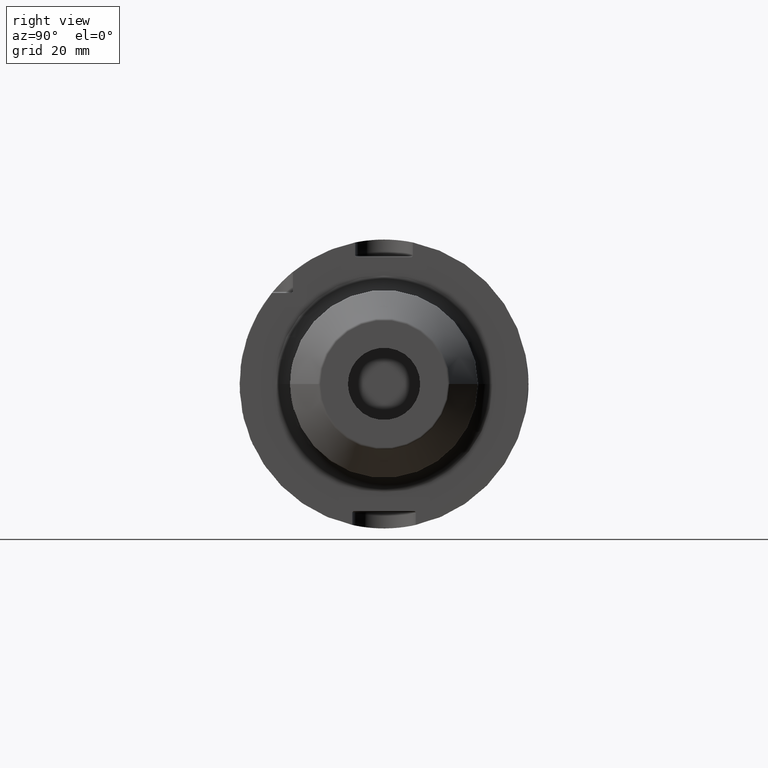
[diagram: clean part render]
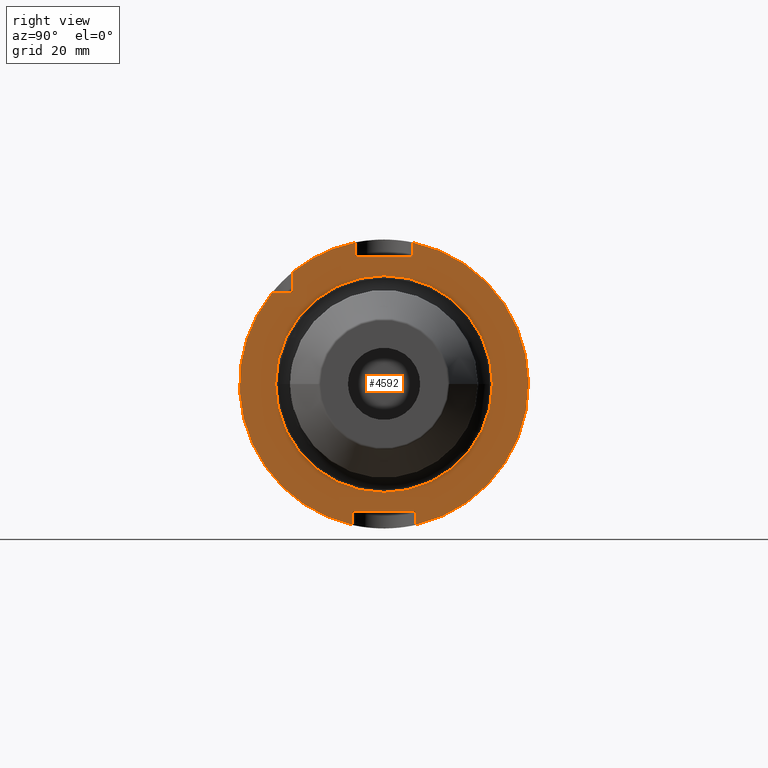
[diagram: same view with one face highlighted and labeled with its STEP entity id]
A machine part, right view. The second image highlights one B-rep face of the part: STEP entity #4592.
In plain terms, the highlighted planar face has unit normal (1, 0, 0).
Its self-contained STEP definition (entity closure, byte-faithful):
#1051=DIRECTION('',(0.E0,-7.071067811865E-1,-7.071067811865E-1));
#1052=VECTOR('',#1051,5.656854249492E-1);
#1053=CARTESIAN_POINT('',(2.9E1,-3.15E1,3.19E1));
#1054=LINE('',#1053,#1052);
#1059=DIRECTION('',(0.E0,1.E0,0.E0));
#1060=VECTOR('',#1059,6.929756630708E0);
#1061=CARTESIAN_POINT('',(2.9E1,-3.882975663071E1,3.15E1));
#1062=LINE('',#1061,#1060);
#1063=DIRECTION('',(0.E0,0.E0,-1.E0));
#1064=VECTOR('',#1063,6.929756630708E0);
#1065=CARTESIAN_POINT('',(2.9E1,-3.15E1,3.882975663071E1));
#1066=LINE('',#1065,#1064);
#1067=DIRECTION('',(0.E0,0.E0,-1.E0));
#1068=VECTOR('',#1067,4.589794855664E0);
#1069=CARTESIAN_POINT('',(2.9E1,-1.E1,4.898979485566E1));
#1070=LINE('',#1069,#1068);
#1071=DIRECTION('',(0.E0,1.E0,0.E0));
#1072=VECTOR('',#1071,1.92E1);
#1073=CARTESIAN_POINT('',(2.9E1,-9.6E0,4.4E1));
#1074=LINE('',#1073,#1072);
#1075=DIRECTION('',(0.E0,0.E0,-1.E0));
#1076=VECTOR('',#1075,4.589794855664E0);
#1077=CARTESIAN_POINT('',(2.9E1,1.E1,4.898979485566E1));
#1078=LINE('',#1077,#1076);
#1079=DIRECTION('',(0.E0,0.E0,1.E0));
#1080=VECTOR('',#1079,4.374993593029E0);
#1081=CARTESIAN_POINT('',(2.9E1,1.1E1,-4.877499359303E1));
#1082=LINE('',#1081,#1080);
#1083=DIRECTION('',(0.E0,-1.E0,0.E0));
#1084=VECTOR('',#1083,2.12E1);
#1085=CARTESIAN_POINT('',(2.9E1,1.06E1,-4.4E1));
#1086=LINE('',#1085,#1084);
#1087=DIRECTION('',(0.E0,0.E0,1.E0));
#1088=VECTOR('',#1087,4.374993593029E0);
#1089=CARTESIAN_POINT('',(2.9E1,-1.1E1,-4.877499359303E1));
#1090=LINE('',#1089,#1088);
#1091=CARTESIAN_POINT('',(2.9E1,0.E0,0.E0));
#1092=DIRECTION('',(1.E0,0.E0,0.E0));
#1093=DIRECTION('',(0.E0,-1.E0,0.E0));
#1094=AXIS2_PLACEMENT_3D('',#1091,#1092,#1093);
#1096=CARTESIAN_POINT('',(2.9E1,0.E0,0.E0));
#1097=DIRECTION('',(1.E0,0.E0,0.E0));
#1098=DIRECTION('',(0.E0,1.E0,0.E0));
#1099=AXIS2_PLACEMENT_3D('',#1096,#1097,#1098);
#1114=CARTESIAN_POINT('',(2.9E1,0.E0,0.E0));
#1115=DIRECTION('',(1.E0,0.E0,0.E0));
#1116=DIRECTION('',(0.E0,2.2E-1,-9.754998718606E-1));
#1117=AXIS2_PLACEMENT_3D('',#1114,#1115,#1116);
#1127=CARTESIAN_POINT('',(2.9E1,0.E0,0.E0));
#1128=DIRECTION('',(1.E0,0.E0,0.E0));
#1129=DIRECTION('',(0.E0,-7.765951326142E-1,6.3E-1));
#1130=AXIS2_PLACEMENT_3D('',#1127,#1128,#1129);
#1144=CARTESIAN_POINT('',(2.9E1,0.E0,0.E0));
#1145=DIRECTION('',(1.E0,0.E0,0.E0));
#1146=DIRECTION('',(0.E0,-2.E-1,9.797958971133E-1));
#1147=AXIS2_PLACEMENT_3D('',#1144,#1145,#1146);
#1251=DIRECTION('',(0.E0,7.071067811866E-1,-7.071067811865E-1));
#1252=VECTOR('',#1251,5.656854249492E-1);
#1253=CARTESIAN_POINT('',(2.9E1,1.06E1,-4.4E1));
#1254=LINE('',#1253,#1252);
#1259=DIRECTION('',(0.E0,7.071067811866E-1,7.071067811865E-1));
#1260=VECTOR('',#1259,5.656854249492E-1);
#1261=CARTESIAN_POINT('',(2.9E1,-1.1E1,-4.44E1));
#1262=LINE('',#1261,#1260);
#1748=DIRECTION('',(0.E0,-7.071067811866E-1,-7.071067811865E-1));
#1749=VECTOR('',#1748,5.656854249492E-1);
#1750=CARTESIAN_POINT('',(2.9E1,1.E1,4.44E1));
#1751=LINE('',#1750,#1749);
#1756=DIRECTION('',(0.E0,-7.071067811866E-1,7.071067811865E-1));
#1757=VECTOR('',#1756,5.656854249492E-1);
#1758=CARTESIAN_POINT('',(2.9E1,-9.6E0,4.4E1));
#1759=LINE('',#1758,#1757);
#3270=CARTESIAN_POINT('',(2.9E1,-9.6E0,4.4E1));
#3271=CARTESIAN_POINT('',(2.9E1,-1.E1,4.44E1));
#3272=VERTEX_POINT('',#3270);
#3273=VERTEX_POINT('',#3271);
#3274=CARTESIAN_POINT('',(2.9E1,1.E1,4.44E1));
#3275=CARTESIAN_POINT('',(2.9E1,9.6E0,4.4E1));
#3276=VERTEX_POINT('',#3274);
#3277=VERTEX_POINT('',#3275);
#3278=CARTESIAN_POINT('',(2.9E1,1.06E1,-4.4E1));
#3279=CARTESIAN_POINT('',(2.9E1,1.1E1,-4.44E1));
#3280=VERTEX_POINT('',#3278);
#3281=VERTEX_POINT('',#3279);
#3282=CARTESIAN_POINT('',(2.9E1,-1.1E1,-4.44E1));
#3283=CARTESIAN_POINT('',(2.9E1,-1.06E1,-4.4E1));
#3284=VERTEX_POINT('',#3282);
#3285=VERTEX_POINT('',#3283);
#3323=CARTESIAN_POINT('',(2.9E1,1.1E1,-4.877499359303E1));
#3325=VERTEX_POINT('',#3323);
#3331=CARTESIAN_POINT('',(2.9E1,-1.1E1,-4.877499359303E1));
#3333=VERTEX_POINT('',#3331);
#3366=CARTESIAN_POINT('',(2.9E1,-1.E1,4.898979485566E1));
#3367=VERTEX_POINT('',#3366);
#3368=CARTESIAN_POINT('',(2.9E1,1.E1,4.898979485566E1));
#3369=VERTEX_POINT('',#3368);
#3372=CARTESIAN_POINT('',(2.9E1,-3.15E1,3.19E1));
#3373=CARTESIAN_POINT('',(2.9E1,-3.19E1,3.15E1));
#3374=VERTEX_POINT('',#3372);
#3375=VERTEX_POINT('',#3373);
#3381=CARTESIAN_POINT('',(2.9E1,-3.882975663071E1,3.15E1));
#3383=VERTEX_POINT('',#3381);
#3385=CARTESIAN_POINT('',(2.9E1,-3.15E1,3.882975663071E1));
#3387=VERTEX_POINT('',#3385);
#3449=CARTESIAN_POINT('',(2.9E1,-3.75E1,0.E0));
#3450=CARTESIAN_POINT('',(2.9E1,3.75E1,0.E0));
#3451=VERTEX_POINT('',#3449);
#3452=VERTEX_POINT('',#3450);
#4548=CARTESIAN_POINT('',(2.9E1,0.E0,0.E0));
#4549=DIRECTION('',(1.E0,0.E0,0.E0));
#4550=DIRECTION('',(0.E0,-1.E0,0.E0));
#4551=AXIS2_PLACEMENT_3D('',#4548,#4549,#4550);
#4552=PLANE('',#4551);
#4554=ORIENTED_EDGE('',*,*,#4553,.T.);
#4555=ORIENTED_EDGE('',*,*,#4538,.F.);
#4557=ORIENTED_EDGE('',*,*,#4556,.F.);
#4559=ORIENTED_EDGE('',*,*,#4558,.F.);
#4561=ORIENTED_EDGE('',*,*,#4560,.T.);
#4563=ORIENTED_EDGE('',*,*,#4562,.F.);
#4565=ORIENTED_EDGE('',*,*,#4564,.T.);
#4567=ORIENTED_EDGE('',*,*,#4566,.F.);
#4569=ORIENTED_EDGE('',*,*,#4568,.F.);
#4571=ORIENTED_EDGE('',*,*,#4570,.F.);
#4573=ORIENTED_EDGE('',*,*,#4572,.T.);
#4575=ORIENTED_EDGE('',*,*,#4574,.F.);
#4577=ORIENTED_EDGE('',*,*,#4576,.T.);
#4579=ORIENTED_EDGE('',*,*,#4578,.F.);
#4581=ORIENTED_EDGE('',*,*,#4580,.F.);
#4583=ORIENTED_EDGE('',*,*,#4582,.F.);
#4584=EDGE_LOOP('',(#4554,#4555,#4557,#4559,#4561,#4563,#4565,#4567,#4569,#4571,
#4573,#4575,#4577,#4579,#4581,#4583));
#4585=FACE_OUTER_BOUND('',#4584,.F.);
#4587=ORIENTED_EDGE('',*,*,#4586,.T.);
#4589=ORIENTED_EDGE('',*,*,#4588,.T.);
#4590=EDGE_LOOP('',(#4587,#4589));
#4591=FACE_BOUND('',#4590,.F.);
#4592=ADVANCED_FACE('',(#4585,#4591),#4552,.T.);
#1095=CIRCLE('',#1094,3.75E1);
#1100=CIRCLE('',#1099,3.75E1);
#1118=CIRCLE('',#1117,5.E1);
#1131=CIRCLE('',#1130,5.E1);
#1148=CIRCLE('',#1147,5.E1);
#4538=EDGE_CURVE('',#3374,#3375,#1054,.T.);
#4553=EDGE_CURVE('',#3383,#3375,#1062,.T.);
#4556=EDGE_CURVE('',#3387,#3374,#1066,.T.);
#4558=EDGE_CURVE('',#3367,#3387,#1148,.T.);
#4560=EDGE_CURVE('',#3367,#3273,#1070,.T.);
#4562=EDGE_CURVE('',#3272,#3273,#1759,.T.);
#4564=EDGE_CURVE('',#3272,#3277,#1074,.T.);
#4566=EDGE_CURVE('',#3276,#3277,#1751,.T.);
#4568=EDGE_CURVE('',#3369,#3276,#1078,.T.);
#4570=EDGE_CURVE('',#3325,#3369,#1118,.T.);
#4572=EDGE_CURVE('',#3325,#3281,#1082,.T.);
#4574=EDGE_CURVE('',#3280,#3281,#1254,.T.);
#4576=EDGE_CURVE('',#3280,#3285,#1086,.T.);
#4578=EDGE_CURVE('',#3284,#3285,#1262,.T.);
#4580=EDGE_CURVE('',#3333,#3284,#1090,.T.);
#4582=EDGE_CURVE('',#3383,#3333,#1131,.T.);
#4586=EDGE_CURVE('',#3451,#3452,#1095,.T.);
#4588=EDGE_CURVE('',#3452,#3451,#1100,.T.);